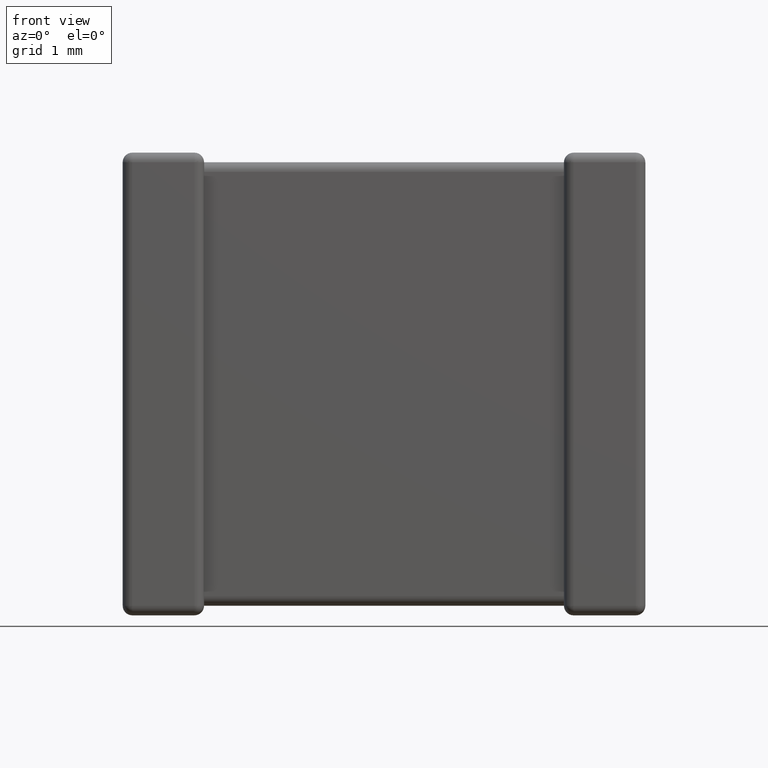
[diagram: clean part render]
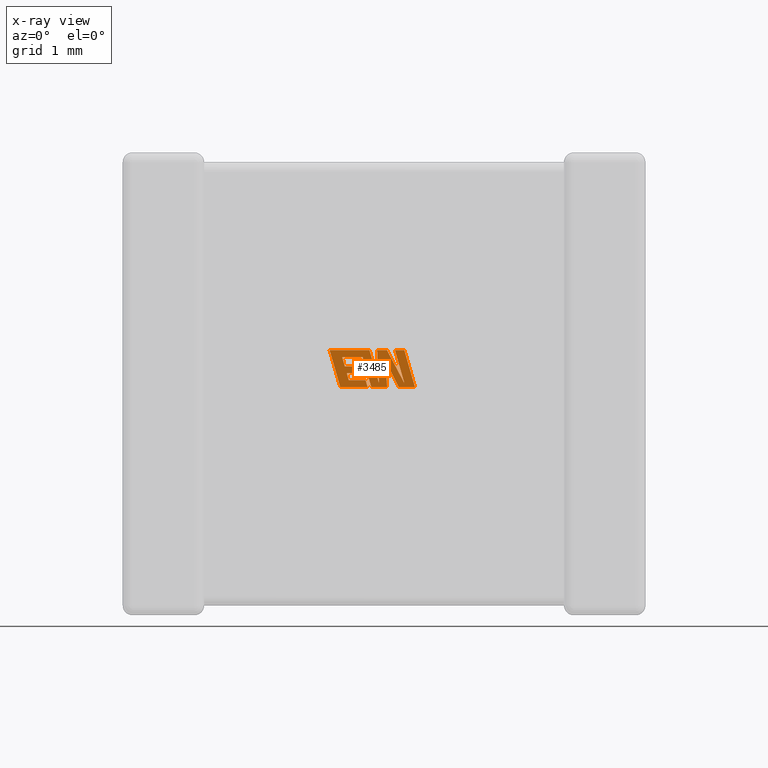
[diagram: x-ray — body ghosted, one internal face saturated and labeled with its STEP entity id]
A machine part, front view, then the same camera in x-ray: the body is ghosted and one INTERNAL B-rep face — a face not visible from any outside direction — is saturated and labeled: STEP entity #3485.
In plain terms, the highlighted planar face has unit normal (0, -1, 0).
Its self-contained STEP definition (entity closure, byte-faithful):
#42 = LINE ( 'NONE', #1358, #1147 ) ;
#50 = LINE ( 'NONE', #3434, #3827 ) ;
#55 = ORIENTED_EDGE ( 'NONE', *, *, #4232, .F. ) ;
#60 = DIRECTION ( 'NONE',  ( -0.05596501978068185700, 0.0000000000000000000, 0.9984327301130245800 ) ) ;
#87 = VERTEX_POINT ( 'NONE', #637 ) ;
#106 = EDGE_CURVE ( 'NONE', #2572, #3861, #4047, .T. ) ;
#110 = CARTESIAN_POINT ( 'NONE',  ( 2.415520223519360200, 2.437679999999999800, -2.306340000000000100 ) ) ;
#141 = LINE ( 'NONE', #1280, #2570 ) ;
#144 = VECTOR ( 'NONE', #568, 1000.000000000000000 ) ;
#152 = DIRECTION ( 'NONE',  ( 0.2763139702539146300, 0.0000000000000000000, -0.9610674221107063900 ) ) ;
#160 = VECTOR ( 'NONE', #1433, 1000.000000000000000 ) ;
#214 = CARTESIAN_POINT ( 'NONE',  ( 2.539739803763990000, 2.437679999999999800, -2.738018101797654100 ) ) ;
#226 = AXIS2_PLACEMENT_3D ( 'NONE', #2092, #2863, #2836 ) ;
#306 = CARTESIAN_POINT ( 'NONE',  ( 2.835311761819844500, 2.437679999999999800, -2.655850391644456500 ) ) ;
#311 = EDGE_CURVE ( 'NONE', #2968, #1706, #4678, .T. ) ;
#319 = CARTESIAN_POINT ( 'NONE',  ( 2.539739803763990000, 2.437679999999999800, -2.738018101797654100 ) ) ;
#322 = ORIENTED_EDGE ( 'NONE', *, *, #1672, .F. ) ;
#337 = CARTESIAN_POINT ( 'NONE',  ( 2.561933919047046300, 2.437679999999999800, -2.388467020723880300 ) ) ;
#367 = VECTOR ( 'NONE', #3553, 1000.000000000000000 ) ;
#368 = ORIENTED_EDGE ( 'NONE', *, *, #4472, .F. ) ;
#442 = ORIENTED_EDGE ( 'NONE', *, *, #3997, .F. ) ;
#474 = CARTESIAN_POINT ( 'NONE',  ( 2.592503494125973300, 2.437679999999999800, -2.495755860006286600 ) ) ;
#494 = ORIENTED_EDGE ( 'NONE', *, *, #4458, .F. ) ;
#503 = VECTOR ( 'NONE', #941, 1000.000000000000000 ) ;
#506 = CARTESIAN_POINT ( 'NONE',  ( 2.638634807381588400, 2.437679999999999800, -2.655850391644456500 ) ) ;
#511 = EDGE_CURVE ( 'NONE', #1424, #1206, #4327, .T. ) ;
#520 = EDGE_CURVE ( 'NONE', #4395, #3481, #3129, .T. ) ;
#523 = CARTESIAN_POINT ( 'NONE',  ( 3.288313749777273600, 2.437679999999999800, -2.692502380243609200 ) ) ;
#540 = DIRECTION ( 'NONE',  ( 1.000000000000000000, 0.0000000000000000000, 0.0000000000000000000 ) ) ;
#550 = DIRECTION ( 'NONE',  ( 1.000000000000000000, 0.0000000000000000000, 0.0000000000000000000 ) ) ;
#568 = DIRECTION ( 'NONE',  ( 1.000000000000000000, 0.0000000000000000000, 0.0000000000000000000 ) ) ;
#619 = DIRECTION ( 'NONE',  ( -0.2765379750249969400, 0.0000000000000000000, 0.9610029908221275900 ) ) ;
#622 = CARTESIAN_POINT ( 'NONE',  ( 2.880570220824253200, 2.437679999999999800, -2.306340000000000100 ) ) ;
#637 = CARTESIAN_POINT ( 'NONE',  ( 3.085542842605907100, 2.437679999999999800, -2.738018101797654100 ) ) ;
#639 = ORIENTED_EDGE ( 'NONE', *, *, #311, .F. ) ;
#651 = LINE ( 'NONE', #474, #3590 ) ;
#661 = LINE ( 'NONE', #4461, #3985 ) ;
#684 = CARTESIAN_POINT ( 'NONE',  ( 2.592503494125973300, 2.437679999999999800, -2.495755860006286600 ) ) ;
#721 = CARTESIAN_POINT ( 'NONE',  ( 2.858649118835884900, 2.437679999999999800, -2.738018101797654100 ) ) ;
#737 = DIRECTION ( 'NONE',  ( 1.000000000000000000, 0.0000000000000000000, 0.0000000000000000000 ) ) ;
#765 = VECTOR ( 'NONE', #619, 1000.000000000000100 ) ;
#845 = EDGE_CURVE ( 'NONE', #1155, #1418, #42, .T. ) ;
#846 = VECTOR ( 'NONE', #4052, 1000.000000000000100 ) ;
#856 = CARTESIAN_POINT ( 'NONE',  ( 2.880570220824253200, 2.437679999999999800, -2.306340000000000100 ) ) ;
#941 = DIRECTION ( 'NONE',  ( 1.000000000000000000, 0.0000000000000000000, -2.459231407381526200E-015 ) ) ;
#968 = VECTOR ( 'NONE', #737, 1000.000000000000000 ) ;
#996 = VECTOR ( 'NONE', #3620, 1000.000000000000000 ) ;
#1027 = DIRECTION ( 'NONE',  ( 0.2732148821746424600, 0.0000000000000000000, -0.9619530280415443700 ) ) ;
#1031 = ORIENTED_EDGE ( 'NONE', *, *, #3523, .F. ) ;
#1040 = VECTOR ( 'NONE', #60, 1000.000000000000200 ) ;
#1070 = CARTESIAN_POINT ( 'NONE',  ( 2.990917330177049300, 2.437679999999999800, -2.690651667455290900 ) ) ;
#1089 = ORIENTED_EDGE ( 'NONE', *, *, #520, .F. ) ;
#1110 = LINE ( 'NONE', #2523, #160 ) ;
#1147 = VECTOR ( 'NONE', #2428, 1000.000000000000000 ) ;
#1155 = VERTEX_POINT ( 'NONE', #3377 ) ;
#1182 = EDGE_CURVE ( 'NONE', #3540, #3885, #1934, .T. ) ;
#1189 = CARTESIAN_POINT ( 'NONE',  ( 3.287116692994520100, 2.437679999999999800, -2.306340000000000100 ) ) ;
#1206 = VERTEX_POINT ( 'NONE', #3492 ) ;
#1271 = EDGE_CURVE ( 'NONE', #3885, #87, #141, .T. ) ;
#1273 = CARTESIAN_POINT ( 'NONE',  ( 2.561933919047046300, 2.437679999999999800, -2.388467020723880300 ) ) ;
#1280 = CARTESIAN_POINT ( 'NONE',  ( 3.068941737194691200, 2.437679999999999800, -2.429621719490298500 ) ) ;
#1286 = CARTESIAN_POINT ( 'NONE',  ( 2.777758531761731000, 2.437679999999999800, -2.495755860006286600 ) ) ;
#1311 = CARTESIAN_POINT ( 'NONE',  ( 3.177420614523705800, 2.437679999999999800, -2.306340000000000100 ) ) ;
#1358 = CARTESIAN_POINT ( 'NONE',  ( 2.800552488001333300, 2.437679999999999800, -2.575558332963582500 ) ) ;
#1384 = CARTESIAN_POINT ( 'NONE',  ( 3.084457079766796300, 2.437679999999999800, -2.306340000000000100 ) ) ;
#1408 = VERTEX_POINT ( 'NONE', #337 ) ;
#1412 = LINE ( 'NONE', #3563, #4125 ) ;
#1418 = VERTEX_POINT ( 'NONE', #2813 ) ;
#1424 = VERTEX_POINT ( 'NONE', #4669 ) ;
#1433 = DIRECTION ( 'NONE',  ( -1.000000000000000000, 0.0000000000000000000, 0.0000000000000000000 ) ) ;
#1454 = EDGE_CURVE ( 'NONE', #1206, #3540, #2274, .T. ) ;
#1470 = CARTESIAN_POINT ( 'NONE',  ( 2.615271199120353400, 2.437679999999999800, -2.575558332963582500 ) ) ;
#1506 = VECTOR ( 'NONE', #3136, 1000.000000000000100 ) ;
#1634 = EDGE_CURVE ( 'NONE', #3215, #1999, #3826, .T. ) ;
#1646 = ORIENTED_EDGE ( 'NONE', *, *, #511, .F. ) ;
#1672 = EDGE_CURVE ( 'NONE', #4083, #1155, #661, .T. ) ;
#1706 = VERTEX_POINT ( 'NONE', #523 ) ;
#1751 = EDGE_CURVE ( 'NONE', #4186, #4395, #3011, .T. ) ;
#1772 = ORIENTED_EDGE ( 'NONE', *, *, #3299, .F. ) ;
#1789 = EDGE_CURVE ( 'NONE', #2592, #4186, #3656, .T. ) ;
#1792 = CARTESIAN_POINT ( 'NONE',  ( 2.901706411273205200, 2.437679999999999800, -2.738018101797654100 ) ) ;
#1805 = CARTESIAN_POINT ( 'NONE',  ( 3.177420614523705800, 2.437679999999999800, -2.306340000000000100 ) ) ;
#1814 = LINE ( 'NONE', #1470, #846 ) ;
#1820 = VERTEX_POINT ( 'NONE', #1311 ) ;
#1905 = CARTESIAN_POINT ( 'NONE',  ( 2.801232395251704400, 2.437679999999999800, -2.388467020723880300 ) ) ;
#1934 = LINE ( 'NONE', #2313, #2781 ) ;
#1961 = CARTESIAN_POINT ( 'NONE',  ( 2.638634807381588400, 2.437679999999999800, -2.655850391644456500 ) ) ;
#1983 = ORIENTED_EDGE ( 'NONE', *, *, #4612, .F. ) ;
#1999 = VERTEX_POINT ( 'NONE', #306 ) ;
#2040 = LINE ( 'NONE', #1805, #968 ) ;
#2092 = CARTESIAN_POINT ( 'NONE',  ( -0.0004046433776275053200, 2.437679999999999000, -0.8546536584304120800 ) ) ;
#2093 = EDGE_CURVE ( 'NONE', #3481, #3070, #2783, .T. ) ;
#2170 = CARTESIAN_POINT ( 'NONE',  ( 3.221896250738492700, 2.437679999999999800, -2.738018101797654100 ) ) ;
#2274 = LINE ( 'NONE', #2437, #367 ) ;
#2313 = CARTESIAN_POINT ( 'NONE',  ( 3.221896250738492700, 2.437679999999999800, -2.738018101797654100 ) ) ;
#2395 = ORIENTED_EDGE ( 'NONE', *, *, #1454, .F. ) ;
#2408 = ORIENTED_EDGE ( 'NONE', *, *, #3418, .F. ) ;
#2410 = VECTOR ( 'NONE', #3614, 1000.000000000000100 ) ;
#2428 = DIRECTION ( 'NONE',  ( -1.000000000000000000, 0.0000000000000000000, 0.0000000000000000000 ) ) ;
#2437 = CARTESIAN_POINT ( 'NONE',  ( 3.411227330224758900, 2.437679999999999800, -2.738018101797654100 ) ) ;
#2471 = VECTOR ( 'NONE', #1027, 1000.000000000000000 ) ;
#2523 = CARTESIAN_POINT ( 'NONE',  ( 2.801232395251704400, 2.437679999999999800, -2.388467020723880300 ) ) ;
#2543 = ORIENTED_EDGE ( 'NONE', *, *, #1789, .F. ) ;
#2570 = VECTOR ( 'NONE', #4586, 1000.000000000000100 ) ;
#2572 = VERTEX_POINT ( 'NONE', #1792 ) ;
#2584 = ORIENTED_EDGE ( 'NONE', *, *, #845, .F. ) ;
#2592 = VERTEX_POINT ( 'NONE', #319 ) ;
#2633 = LINE ( 'NONE', #1273, #2914 ) ;
#2697 = DIRECTION ( 'NONE',  ( 0.2746459304917039400, 0.0000000000000000000, -0.9615454294334439000 ) ) ;
#2724 = ORIENTED_EDGE ( 'NONE', *, *, #1751, .F. ) ;
#2757 = ORIENTED_EDGE ( 'NONE', *, *, #1271, .F. ) ;
#2758 = CARTESIAN_POINT ( 'NONE',  ( 2.969375558335647400, 2.437679999999999800, -2.306340000000000100 ) ) ;
#2781 = VECTOR ( 'NONE', #3754, 1000.000000000000000 ) ;
#2783 = LINE ( 'NONE', #1070, #1040 ) ;
#2795 = ORIENTED_EDGE ( 'NONE', *, *, #1182, .F. ) ;
#2807 = CARTESIAN_POINT ( 'NONE',  ( 2.835311761819844500, 2.437679999999999800, -2.655850391644456500 ) ) ;
#2813 = CARTESIAN_POINT ( 'NONE',  ( 2.615271199120353400, 2.437679999999999800, -2.575558332963582500 ) ) ;
#2836 = DIRECTION ( 'NONE',  ( 0.0000000000000000000, 0.0000000000000000000, -1.000000000000000000 ) ) ;
#2863 = DIRECTION ( 'NONE',  ( 0.0000000000000000000, -1.000000000000000000, 0.0000000000000000000 ) ) ;
#2906 = VECTOR ( 'NONE', #550, 1000.000000000000000 ) ;
#2914 = VECTOR ( 'NONE', #4516, 1000.000000000000100 ) ;
#2957 = VECTOR ( 'NONE', #3335, 1000.000000000000200 ) ;
#2958 = CARTESIAN_POINT ( 'NONE',  ( 2.969375558335647400, 2.437679999999999800, -2.306340000000000100 ) ) ;
#2968 = VERTEX_POINT ( 'NONE', #1384 ) ;
#3004 = ORIENTED_EDGE ( 'NONE', *, *, #2093, .F. ) ;
#3009 = VERTEX_POINT ( 'NONE', #684 ) ;
#3011 = LINE ( 'NONE', #4525, #503 ) ;
#3070 = VERTEX_POINT ( 'NONE', #2958 ) ;
#3074 = FACE_OUTER_BOUND ( 'NONE', #3458, .T. ) ;
#3129 = LINE ( 'NONE', #856, #2957 ) ;
#3136 = DIRECTION ( 'NONE',  ( -0.2762517575166416100, 0.0000000000000000000, 0.9610853065513833600 ) ) ;
#3179 = CARTESIAN_POINT ( 'NONE',  ( 3.084457079766796300, 2.437679999999999800, -2.306340000000000100 ) ) ;
#3213 = CARTESIAN_POINT ( 'NONE',  ( 2.990917330177049300, 2.437679999999999800, -2.690651667455290900 ) ) ;
#3215 = VERTEX_POINT ( 'NONE', #1961 ) ;
#3291 = EDGE_CURVE ( 'NONE', #4132, #2592, #50, .T. ) ;
#3299 = EDGE_CURVE ( 'NONE', #1408, #3009, #2633, .T. ) ;
#3335 = DIRECTION ( 'NONE',  ( 0.2759782365590801000, 0.0000000000000000000, -0.9611638845408936300 ) ) ;
#3359 = CARTESIAN_POINT ( 'NONE',  ( 3.068941737194691200, 2.437679999999999800, -2.429621719490298500 ) ) ;
#3377 = CARTESIAN_POINT ( 'NONE',  ( 2.800552488001333300, 2.437679999999999800, -2.575558332963582500 ) ) ;
#3418 = EDGE_CURVE ( 'NONE', #1999, #4132, #3424, .T. ) ;
#3424 = LINE ( 'NONE', #2807, #2471 ) ;
#3434 = CARTESIAN_POINT ( 'NONE',  ( 2.858649118835884900, 2.437679999999999800, -2.738018101797654100 ) ) ;
#3453 = ORIENTED_EDGE ( 'NONE', *, *, #3643, .F. ) ;
#3458 = EDGE_LOOP ( 'NONE', ( #2395, #1646, #368, #494, #639, #442, #3004, #1089, #2724, #2543, #4540, #2408, #3474, #1983, #2584, #322, #55, #1772, #3453, #4067, #1031, #2757, #2795 ) ) ;
#3474 = ORIENTED_EDGE ( 'NONE', *, *, #1634, .F. ) ;
#3481 = VERTEX_POINT ( 'NONE', #3213 ) ;
#3485 = ADVANCED_FACE ( 'NONE', ( #3074 ), #4673, .T. ) ;
#3492 = CARTESIAN_POINT ( 'NONE',  ( 3.411227330224758900, 2.437679999999999800, -2.738018101797654100 ) ) ;
#3523 = EDGE_CURVE ( 'NONE', #87, #2572, #3718, .T. ) ;
#3540 = VERTEX_POINT ( 'NONE', #2170 ) ;
#3553 = DIRECTION ( 'NONE',  ( -1.000000000000000000, 0.0000000000000000000, 0.0000000000000000000 ) ) ;
#3563 = CARTESIAN_POINT ( 'NONE',  ( 3.288313749777273600, 2.437679999999999800, -2.692502380243609200 ) ) ;
#3590 = VECTOR ( 'NONE', #540, 1000.000000000000000 ) ;
#3614 = DIRECTION ( 'NONE',  ( 0.4668459304955247000, 0.0000000000000000000, -0.8843386665637592600 ) ) ;
#3620 = DIRECTION ( 'NONE',  ( -1.000000000000000000, 0.0000000000000000000, 0.0000000000000000000 ) ) ;
#3643 = EDGE_CURVE ( 'NONE', #3861, #1408, #1110, .T. ) ;
#3656 = LINE ( 'NONE', #214, #765 ) ;
#3718 = LINE ( 'NONE', #3947, #996 ) ;
#3754 = DIRECTION ( 'NONE',  ( -0.4443210308329503300, 0.0000000000000000000, 0.8958676361826809500 ) ) ;
#3826 = LINE ( 'NONE', #506, #2906 ) ;
#3827 = VECTOR ( 'NONE', #4528, 1000.000000000000000 ) ;
#3861 = VERTEX_POINT ( 'NONE', #1905 ) ;
#3885 = VERTEX_POINT ( 'NONE', #3359 ) ;
#3908 = DIRECTION ( 'NONE',  ( -0.2760118818968593200, 0.0000000000000000000, 0.9611542233438680200 ) ) ;
#3925 = VECTOR ( 'NONE', #152, 1000.000000000000100 ) ;
#3947 = CARTESIAN_POINT ( 'NONE',  ( 3.085542842605907100, 2.437679999999999800, -2.738018101797654100 ) ) ;
#3985 = VECTOR ( 'NONE', #2697, 1000.000000000000100 ) ;
#3997 = EDGE_CURVE ( 'NONE', #3070, #2968, #4085, .T. ) ;
#4047 = LINE ( 'NONE', #4584, #1506 ) ;
#4052 = DIRECTION ( 'NONE',  ( 0.2793947940878428500, 0.0000000000000000000, -0.9601763114327555000 ) ) ;
#4067 = ORIENTED_EDGE ( 'NONE', *, *, #106, .F. ) ;
#4083 = VERTEX_POINT ( 'NONE', #1286 ) ;
#4085 = LINE ( 'NONE', #2758, #144 ) ;
#4125 = VECTOR ( 'NONE', #3908, 1000.000000000000200 ) ;
#4132 = VERTEX_POINT ( 'NONE', #721 ) ;
#4186 = VERTEX_POINT ( 'NONE', #110 ) ;
#4232 = EDGE_CURVE ( 'NONE', #3009, #4083, #651, .T. ) ;
#4327 = LINE ( 'NONE', #1189, #3925 ) ;
#4395 = VERTEX_POINT ( 'NONE', #622 ) ;
#4458 = EDGE_CURVE ( 'NONE', #1706, #1820, #1412, .T. ) ;
#4461 = CARTESIAN_POINT ( 'NONE',  ( 2.777758531761731000, 2.437679999999999800, -2.495755860006286600 ) ) ;
#4472 = EDGE_CURVE ( 'NONE', #1820, #1424, #2040, .T. ) ;
#4516 = DIRECTION ( 'NONE',  ( 0.2740217765953990000, 0.0000000000000000000, -0.9617234872620618000 ) ) ;
#4525 = CARTESIAN_POINT ( 'NONE',  ( 2.803732826016275000, 2.437679999999999800, -2.306340000000000100 ) ) ;
#4528 = DIRECTION ( 'NONE',  ( -1.000000000000000000, 0.0000000000000000000, 0.0000000000000000000 ) ) ;
#4540 = ORIENTED_EDGE ( 'NONE', *, *, #3291, .F. ) ;
#4584 = CARTESIAN_POINT ( 'NONE',  ( 2.901706411273205200, 2.437679999999999800, -2.738018101797654100 ) ) ;
#4586 = DIRECTION ( 'NONE',  ( 0.05375259206908433700, 0.0000000000000000000, -0.9985542843760946100 ) ) ;
#4612 = EDGE_CURVE ( 'NONE', #1418, #3215, #1814, .T. ) ;
#4669 = CARTESIAN_POINT ( 'NONE',  ( 3.287116692994520100, 2.437679999999999800, -2.306340000000000100 ) ) ;
#4673 = PLANE ( 'NONE',  #226 ) ;
#4678 = LINE ( 'NONE', #3179, #2410 ) ;